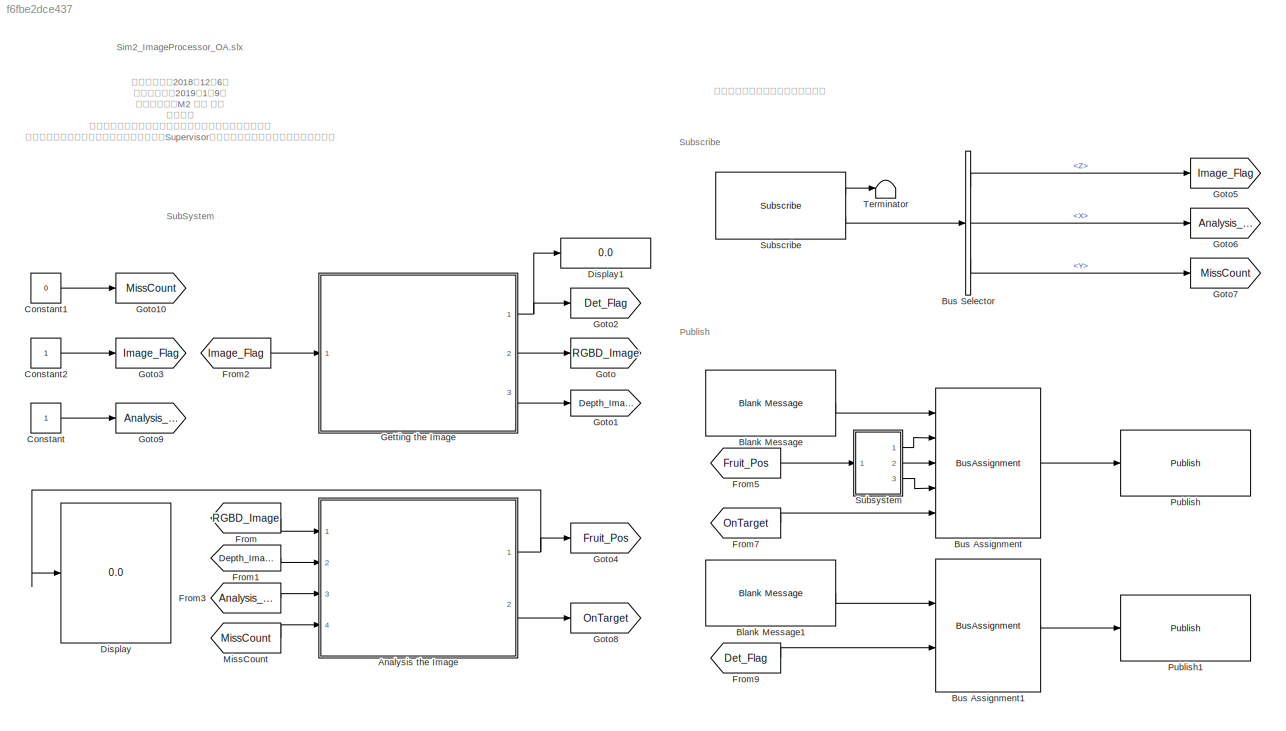
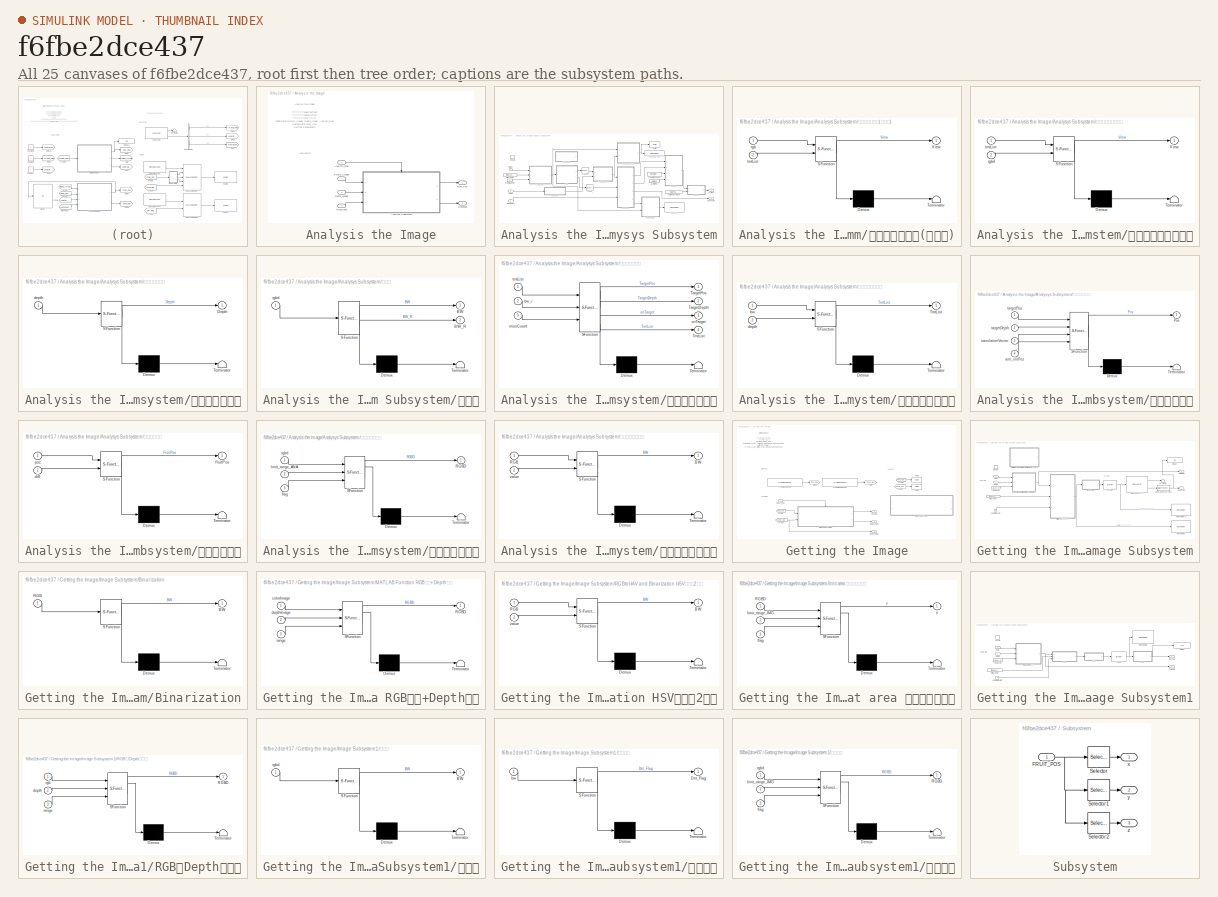
[diagram: thumbnail index - all 25 canvases of the model, root first then tree order]
MODEL slx_f6fbe2dce437
KIND model
CONFIG AbsTol = auto
CONFIG EnableMultiTasking = off
CONFIG FixedStep = auto
CONFIG InitFcn = %run('settingParams.m')
CONFIG MaxStep = auto
CONFIG MinStep = auto
CONFIG RelTol = 1e-3
CONFIG SampleTimeConstraint = Unconstrained
CONFIG SolverName = VariableStepAuto
CONFIG StartTime = 0.0
CONFIG StopTime = Inf
BLOCK [SubSystem] Analysis the Image
  Ports = [4, 2]
  RequestExecContextInheritance = off
BLOCK [Inport] Analysis the Image/Analysis_Flag
  Port = 3
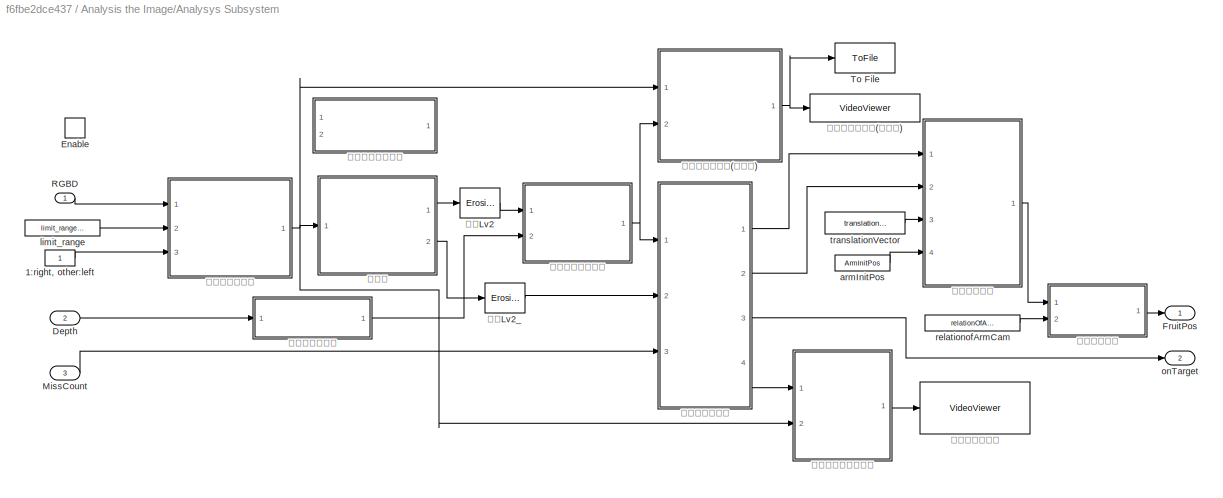
BLOCK [SubSystem] Analysis the Image/Analysys Subsystem
  Ports = [3, 2, 1]
  RequestExecContextInheritance = off
  TreatAsAtomicUnit = on
BLOCK [Constant] Analysis the Image/Analysys Subsystem/1:right, other:left
  SampleTime = dt
BLOCK [Inport] Analysis the Image/Analysys Subsystem/Depth
  Port = 2
BLOCK [EnablePort] Analysis the Image/Analysys Subsystem/Enable
  Ports = []
  PropagateVarSize = During execution
BLOCK [Outport] Analysis the Image/Analysys Subsystem/FruitPos
  VectorParamsAs1DForOutWhenUnconnected = off
BLOCK [Inport] Analysis the Image/Analysys Subsystem/MissCount
  Port = 3
BLOCK [Inport] Analysis the Image/Analysys Subsystem/RGBD
BLOCK [ToFile] Analysis the Image/Analysys Subsystem/To File
  Commented = on
  Filename = RGBD_map.mat
  MatrixName = RGBD
  Ports = [1]
  SaveFormat = Timeseries
BLOCK [Constant] Analysis the Image/Analysys Subsystem/armInitPos
  SampleTime = dt
  Value = ArmInitPos
  VectorParams1D = off
BLOCK [Constant] Analysis the Image/Analysys Subsystem/limit_range
  SampleTime = dt
  Value = limit_range_ANA
BLOCK [Outport] Analysis the Image/Analysys Subsystem/onTarget
  Port = 2
  VectorParamsAs1DForOutWhenUnconnected = off
BLOCK [Constant] Analysis the Image/Analysys Subsystem/relationofArmCam
  SampleTime = dt
  Value = relationOfArmCam
  VectorParams1D = off
BLOCK [Constant] Analysis the Image/Analysys Subsystem/translationVector
  SampleTime = dt
  Value = translationVector
  VectorParams1D = off
BLOCK [SubSystem] Analysis the Image/Analysys Subsystem/マーキング画像(デモ用)
  ErrorFcn = Stateflow.Translate.translate
  PermitHierarchicalResolution = ExplicitOnly
  Ports = [2, 1]
  RequestExecContextInheritance = off
  SFBlockType = MATLAB Function
  TreatAsAtomicUnit = on
BLOCK [Demux] Analysis the Image/Analysys Subsystem/マーキング画像(デモ用)/ Demux 
  Outputs = 1
  Ports = [1, 1]
BLOCK [S-Function] Analysis the Image/Analysys Subsystem/マーキング画像(デモ用)/ SFunction 
  EnableBusSupport = off
  FunctionName = sf_sfun
  PortCounts = [2 2]
  Ports = [2, 2]
  SFcnIsStateOwnerBlock = off
  SFunctionDeploymentMode = off
  Tag = Stateflow S-Function 8
BLOCK [Terminator] Analysis the Image/Analysys Subsystem/マーキング画像(デモ用)/ Terminator 
BLOCK [Outport] Analysis the Image/Analysys Subsystem/マーキング画像(デモ用)/View
  VectorParamsAs1DForOutWhenUnconnected = off
BLOCK [Inport] Analysis the Image/Analysys Subsystem/マーキング画像(デモ用)/rgb
BLOCK [Inport] Analysis the Image/Analysys Subsystem/マーキング画像(デモ用)/tmtList
  Port = 2
BLOCK [SubSystem] Analysis the Image/Analysys Subsystem/マーキング画像生成
  ErrorFcn = Stateflow.Translate.translate
  PermitHierarchicalResolution = ExplicitOnly
  Ports = [2, 1]
  RequestExecContextInheritance = off
  SFBlockType = MATLAB Function
  TreatAsAtomicUnit = on
BLOCK [Demux] Analysis the Image/Analysys Subsystem/マーキング画像生成/ Demux 
  Outputs = 1
  Ports = [1, 1]
BLOCK [S-Function] Analysis the Image/Analysys Subsystem/マーキング画像生成/ SFunction 
  EnableBusSupport = off
  FunctionName = sf_sfun
  PortCounts = [2 2]
  Ports = [2, 2]
  SFcnIsStateOwnerBlock = off
  SFunctionDeploymentMode = off
  Tag = Stateflow S-Function 7
BLOCK [Terminator] Analysis the Image/Analysys Subsystem/マーキング画像生成/ Terminator 
BLOCK [Outport] Analysis the Image/Analysys Subsystem/マーキング画像生成/View
  VectorParamsAs1DForOutWhenUnconnected = off
BLOCK [Inport] Analysis the Image/Analysys Subsystem/マーキング画像生成/rgbd
  Port = 2
BLOCK [Inport] Analysis the Image/Analysys Subsystem/マーキング画像生成/tmtList
BLOCK [SubSystem] Analysis the Image/Analysys Subsystem/上下反転を修正
  ErrorFcn = Stateflow.Translate.translate
  PermitHierarchicalResolution = ExplicitOnly
  Ports = [1, 1]
  RequestExecContextInheritance = off
  SFBlockType = MATLAB Function
  TreatAsAtomicUnit = on
BLOCK [Demux] Analysis the Image/Analysys Subsystem/上下反転を修正/ Demux 
  Outputs = 1
  Ports = [1, 1]
BLOCK [S-Function] Analysis the Image/Analysys Subsystem/上下反転を修正/ SFunction 
  EnableBusSupport = off
  FunctionName = sf_sfun
  PortCounts = [1 2]
  Ports = [1, 2]
  SFcnIsStateOwnerBlock = off
  SFunctionDeploymentMode = off
  Tag = Stateflow S-Function 1
BLOCK [Terminator] Analysis the Image/Analysys Subsystem/上下反転を修正/ Terminator 
BLOCK [Outport] Analysis the Image/Analysys Subsystem/上下反転を修正/Depth
  VectorParamsAs1DForOutWhenUnconnected = off
BLOCK [Inport] Analysis the Image/Analysys Subsystem/上下反転を修正/depth
BLOCK [SubSystem] Analysis the Image/Analysys Subsystem/二値化
  ErrorFcn = Stateflow.Translate.translate
  PermitHierarchicalResolution = ExplicitOnly
  Ports = [1, 2]
  RequestExecContextInheritance = off
  SFBlockType = MATLAB Function
  TreatAsAtomicUnit = on
BLOCK [Demux] Analysis the Image/Analysys Subsystem/二値化/ Demux 
  Outputs = 1
  Ports = [1, 1]
BLOCK [S-Function] Analysis the Image/Analysys Subsystem/二値化/ SFunction 
  EnableBusSupport = off
  FunctionName = sf_sfun
  PortCounts = [1 3]
  Ports = [1, 3]
  SFcnIsStateOwnerBlock = off
  SFunctionDeploymentMode = off
  Tag = Stateflow S-Function 4
BLOCK [Terminator] Analysis the Image/Analysys Subsystem/二値化/ Terminator 
BLOCK [Outport] Analysis the Image/Analysys Subsystem/二値化/BW
  VectorParamsAs1DForOutWhenUnconnected = off
BLOCK [Outport] Analysis the Image/Analysys Subsystem/二値化/BW_R
  Port = 2
  VectorParamsAs1DForOutWhenUnconnected = off
BLOCK [Inport] Analysis the Image/Analysys Subsystem/二値化/rgbd
BLOCK [VideoViewer] Analysis the Image/Analysys Subsystem/全果実検出画像
  FigPos = [86 614 418 305]
  Ports = [1]
  ScopeSpecificationString = vipscopes.VideoViewerScopeCfg('CurrentConfiguration', extmgr.ConfigurationSet(extmgr.Configuration('Core','General UI',true),extmgr.Configuration('Core','Source UI',true),extmgr.Configuration('Sources','WiredSimulink',true),extmgr.Configuration('Visuals','Video',true),extmgr.Configuration('Tools','Image Navigation Tools',true),extmgr.Configuration('Tools','Image Tool',true),extmgr.Configuration('T...<+74ch>
BLOCK [VideoViewer] Analysis the Image/Analysys Subsystem/全果実検出画像(デモ用)
  Commented = on
  FigPos = [717.666666666667 599.333333333333 418 304.666666666667]
  Ports = [1]
  ScopeSpecificationString = vipscopes.VideoViewerScopeCfg('CurrentConfiguration', extmgr.ConfigurationSet(extmgr.Configuration('Core','General UI',true),extmgr.Configuration('Core','Source UI',true),extmgr.Configuration('Sources','WiredSimulink',true),extmgr.Configuration('Visuals','Video',true),extmgr.Configuration('Tools','Image Navigation Tools',true,'Magnification',0.986974331850956),extmgr.Configuration('Tools','Image T...<+174ch>
  colormapValue = gray(256)
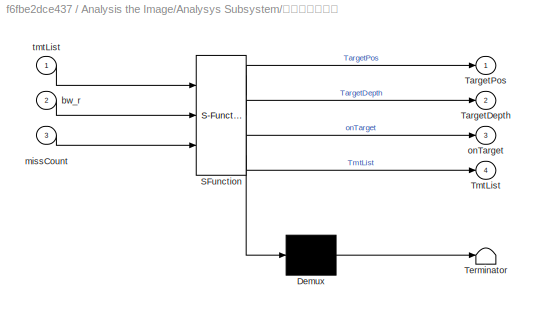
BLOCK [SubSystem] Analysis the Image/Analysys Subsystem/収穫果実を選択
  ErrorFcn = Stateflow.Translate.translate
  PermitHierarchicalResolution = ExplicitOnly
  Ports = [3, 4]
  RequestExecContextInheritance = off
  SFBlockType = MATLAB Function
  TreatAsAtomicUnit = on
BLOCK [Demux] Analysis the Image/Analysys Subsystem/収穫果実を選択/ Demux 
  Outputs = 1
  Ports = [1, 1]
BLOCK [S-Function] Analysis the Image/Analysys Subsystem/収穫果実を選択/ SFunction 
  EnableBusSupport = off
  FunctionName = sf_sfun
  PortCounts = [3 5]
  Ports = [3, 5]
  SFcnIsStateOwnerBlock = off
  SFunctionDeploymentMode = off
  Tag = Stateflow S-Function 17
BLOCK [Terminator] Analysis the Image/Analysys Subsystem/収穫果実を選択/ Terminator 
BLOCK [Outport] Analysis the Image/Analysys Subsystem/収穫果実を選択/TargetDepth
  Port = 2
  VectorParamsAs1DForOutWhenUnconnected = off
BLOCK [Outport] Analysis the Image/Analysys Subsystem/収穫果実を選択/TargetPos
  VectorParamsAs1DForOutWhenUnconnected = off
BLOCK [Outport] Analysis the Image/Analysys Subsystem/収穫果実を選択/TmtList
  Port = 4
  VectorParamsAs1DForOutWhenUnconnected = off
BLOCK [Inport] Analysis the Image/Analysys Subsystem/収穫果実を選択/bw_r
  Port = 2
BLOCK [Inport] Analysis the Image/Analysys Subsystem/収穫果実を選択/missCount
  Port = 3
BLOCK [Outport] Analysis the Image/Analysys Subsystem/収穫果実を選択/onTarget
  Port = 3
  VectorParamsAs1DForOutWhenUnconnected = off
BLOCK [Inport] Analysis the Image/Analysys Subsystem/収穫果実を選択/tmtList
BLOCK [Reference] Analysis the Image/Analysys Subsystem/収縮Lv2  REF=visionmorphops/Erosion
  Ports = [1, 1]
  SourceBlock = visionmorphops/Erosion
  SourceProductBaseCode = VP
  SourceType = Erosion
BLOCK [Reference] Analysis the Image/Analysys Subsystem/収縮Lv2_  REF=visionmorphops/Erosion
  Commented = through
  Ports = [1, 1]
  SourceBlock = visionmorphops/Erosion
  SourceProductBaseCode = VP
  SourceType = Erosion
BLOCK [SubSystem] Analysis the Image/Analysys Subsystem/各果実中心を検出
  ErrorFcn = Stateflow.Translate.translate
  PermitHierarchicalResolution = ExplicitOnly
  Ports = [2, 1]
  RequestExecContextInheritance = off
  SFBlockType = MATLAB Function
  TreatAsAtomicUnit = on
BLOCK [Demux] Analysis the Image/Analysys Subsystem/各果実中心を検出/ Demux 
  Outputs = 1
  Ports = [1, 1]
BLOCK [S-Function] Analysis the Image/Analysys Subsystem/各果実中心を検出/ SFunction 
  EnableBusSupport = off
  FunctionName = sf_sfun
  PortCounts = [2 2]
  Ports = [2, 2]
  SFcnIsStateOwnerBlock = off
  SFunctionDeploymentMode = off
  Tag = Stateflow S-Function 10
BLOCK [Terminator] Analysis the Image/Analysys Subsystem/各果実中心を検出/ Terminator 
BLOCK [Outport] Analysis the Image/Analysys Subsystem/各果実中心を検出/TmtList
  VectorParamsAs1DForOutWhenUnconnected = off
BLOCK [Inport] Analysis the Image/Analysys Subsystem/各果実中心を検出/bw
BLOCK [Inport] Analysis the Image/Analysys Subsystem/各果実中心を検出/depth
  Port = 2
BLOCK [SubSystem] Analysis the Image/Analysys Subsystem/現実座標変換
  ErrorFcn = Stateflow.Translate.translate
  PermitHierarchicalResolution = ExplicitOnly
  Ports = [4, 1]
  RequestExecContextInheritance = off
  SFBlockType = MATLAB Function
  TreatAsAtomicUnit = on
BLOCK [Demux] Analysis the Image/Analysys Subsystem/現実座標変換/ Demux 
  Outputs = 1
  Ports = [1, 1]
BLOCK [S-Function] Analysis the Image/Analysys Subsystem/現実座標変換/ SFunction 
  EnableBusSupport = off
  FunctionName = sf_sfun
  PortCounts = [4 2]
  Ports = [4, 2]
  SFcnIsStateOwnerBlock = off
  SFunctionDeploymentMode = off
  Tag = Stateflow S-Function 9
BLOCK [Terminator] Analysis the Image/Analysys Subsystem/現実座標変換/ Terminator 
BLOCK [Outport] Analysis the Image/Analysys Subsystem/現実座標変換/Pos
  VectorParamsAs1DForOutWhenUnconnected = off
BLOCK [Inport] Analysis the Image/Analysys Subsystem/現実座標変換/arm_initPos
  Port = 4
BLOCK [Inport] Analysis the Image/Analysys Subsystem/現実座標変換/targetDepth
  Port = 2
BLOCK [Inport] Analysis the Image/Analysys Subsystem/現実座標変換/targetPos
BLOCK [Inport] Analysis the Image/Analysys Subsystem/現実座標変換/translationVector
  Port = 3
BLOCK [SubSystem] Analysis the Image/Analysys Subsystem/直線距離変換
  ErrorFcn = Stateflow.Translate.translate
  PermitHierarchicalResolution = ExplicitOnly
  Ports = [2, 1]
  RequestExecContextInheritance = off
  SFBlockType = MATLAB Function
  TreatAsAtomicUnit = on
BLOCK [Demux] Analysis the Image/Analysys Subsystem/直線距離変換/ Demux 
  Outputs = 1
  Ports = [1, 1]
BLOCK [S-Function] Analysis the Image/Analysys Subsystem/直線距離変換/ SFunction 
  EnableBusSupport = off
  FunctionName = sf_sfun
  PortCounts = [2 2]
  Ports = [2, 2]
  SFcnIsStateOwnerBlock = off
  SFunctionDeploymentMode = off
  Tag = Stateflow S-Function 2
BLOCK [Terminator] Analysis the Image/Analysys Subsystem/直線距離変換/ Terminator 
BLOCK [Outport] Analysis the Image/Analysys Subsystem/直線距離変換/FruitPos
  VectorParamsAs1DForOutWhenUnconnected = off
BLOCK [Inport] Analysis the Image/Analysys Subsystem/直線距離変換/diff
  Port = 2
BLOCK [Inport] Analysis the Image/Analysys Subsystem/直線距離変換/pos
BLOCK [SubSystem] Analysis the Image/Analysys Subsystem/着目領域の限定
  ErrorFcn = Stateflow.Translate.translate
  PermitHierarchicalResolution = ExplicitOnly
  Ports = [3, 1]
  RequestExecContextInheritance = off
  SFBlockType = MATLAB Function
  TreatAsAtomicUnit = on
BLOCK [Demux] Analysis the Image/Analysys Subsystem/着目領域の限定/ Demux 
  Outputs = 1
  Ports = [1, 1]
BLOCK [S-Function] Analysis the Image/Analysys Subsystem/着目領域の限定/ SFunction 
  EnableBusSupport = off
  FunctionName = sf_sfun
  PortCounts = [3 2]
  Ports = [3, 2]
  SFcnIsStateOwnerBlock = off
  SFunctionDeploymentMode = off
  Tag = Stateflow S-Function 13
BLOCK [Terminator] Analysis the Image/Analysys Subsystem/着目領域の限定/ Terminator 
BLOCK [Outport] Analysis the Image/Analysys Subsystem/着目領域の限定/RGBD
  VectorParamsAs1DForOutWhenUnconnected = off
BLOCK [Inport] Analysis the Image/Analysys Subsystem/着目領域の限定/flag
  Port = 3
BLOCK [Inport] Analysis the Image/Analysys Subsystem/着目領域の限定/limit_range_ANA
  Port = 2
BLOCK [Inport] Analysis the Image/Analysys Subsystem/着目領域の限定/rgbd
BLOCK [SubSystem] Analysis the Image/Analysys Subsystem/閾値による二値化
  Commented = on
  ErrorFcn = Stateflow.Translate.translate
  PermitHierarchicalResolution = ExplicitOnly
  Ports = [2, 1]
  RequestExecContextInheritance = off
  SFBlockType = MATLAB Function
  TreatAsAtomicUnit = on
BLOCK [Demux] Analysis the Image/Analysys Subsystem/閾値による二値化/ Demux 
  Outputs = 1
  Ports = [1, 1]
BLOCK [S-Function] Analysis the Image/Analysys Subsystem/閾値による二値化/ SFunction 
  EnableBusSupport = off
  FunctionName = sf_sfun
  PortCounts = [2 2]
  Ports = [2, 2]
  SFcnIsStateOwnerBlock = off
  SFunctionDeploymentMode = off
  Tag = Stateflow S-Function 21
BLOCK [Terminator] Analysis the Image/Analysys Subsystem/閾値による二値化/ Terminator 
BLOCK [Outport] Analysis the Image/Analysys Subsystem/閾値による二値化/BW
  VectorParamsAs1DForOutWhenUnconnected = off
BLOCK [Inport] Analysis the Image/Analysys Subsystem/閾値による二値化/RGB
BLOCK [Inport] Analysis the Image/Analysys Subsystem/閾値による二値化/value
  Port = 2
BLOCK [Inport] Analysis the Image/Depth_Image
  Port = 2
BLOCK [Outport] Analysis the Image/Fruit_Pos
  VectorParamsAs1DForOutWhenUnconnected = off
BLOCK [Inport] Analysis the Image/MissCount
  Port = 4
BLOCK [Outport] Analysis the Image/OnTarget
  Port = 2
  VectorParamsAs1DForOutWhenUnconnected = off
BLOCK [Inport] Analysis the Image/RGBD_Image
BLOCK [Reference] Blank Message  REF=robotlib/Blank Message
  Ports = [0, 1]
  SourceBlock = robotlib/Blank Message
  SourceProductBaseCode = RR
  SourceType = ROS Blank Message
BLOCK [Reference] Blank Message1  REF=robotlib/Blank Message
  Ports = [0, 1]
  SourceBlock = robotlib/Blank Message
  SourceProductBaseCode = RR
  SourceType = ROS Blank Message
BLOCK [BusAssignment] Bus Assignment
  AssignedSignals = Twist.Linear.X,Twist.Linear.Y,Twist.Linear.Z,Twist.Angular.X
  Ports = [5, 1]
BLOCK [BusAssignment] Bus Assignment1
  AssignedSignals = Twist.Linear.X
  Ports = [2, 1]
BLOCK [BusSelector] Bus Selector
  OutputSignals = Twist.Linear.Z,Twist.Angular.X,Twist.Angular.Y
  Ports = [1, 3]
BLOCK [Constant] Constant
  Commented = on
BLOCK [Constant] Constant1
  Commented = on
  Value = 0
BLOCK [Constant] Constant2
  Commented = on
BLOCK [Display] Display
  Commented = on
  Decimation = 1
  Ports = [1]
BLOCK [Display] Display1
  Commented = on
  Decimation = 1
  Ports = [1]
BLOCK [From] From
  GotoTag = RGBD_Image
  TagVisibility = global
BLOCK [From] From1
  GotoTag = Depth_Image
  TagVisibility = global
BLOCK [From] From2
  GotoTag = Image_Flag
  TagVisibility = global
BLOCK [From] From3
  GotoTag = Analysis_Flag
  TagVisibility = global
BLOCK [From] From5
  GotoTag = Fruit_Pos
  TagVisibility = global
BLOCK [From] From7
  GotoTag = OnTarget
  TagVisibility = global
BLOCK [From] From9
  GotoTag = Det_Flag
  TagVisibility = global
BLOCK [SubSystem] Getting the Image
  Ports = [1, 3]
  RequestExecContextInheritance = off
BLOCK [Outport] Getting the Image/Depth_Image
  Port = 3
  VectorParamsAs1DForOutWhenUnconnected = off
BLOCK [Outport] Getting the Image/Det_Flag
  VectorParamsAs1DForOutWhenUnconnected = off
BLOCK [From] Getting the Image/From
  GotoTag = RGB_map
  TagVisibility = global
BLOCK [Reference] Getting the Image/From Video Device  REF=imaqlib/From Video Device
  Ports = [0, 1]
  SourceBlock = imaqlib/From Video Device
  SourceProductBaseCode = IA
  SourceType = From Video Device
  UserDataPersistent = on
BLOCK [Reference] Getting the Image/From Video Device1  REF=imaqlib/From Video Device
  Ports = [0, 1]
  SourceBlock = imaqlib/From Video Device
  SourceProductBaseCode = IA
  SourceType = From Video Device
  UserDataPersistent = on
BLOCK [From] Getting the Image/From1
  GotoTag = Depth_map
  TagVisibility = global
BLOCK [From] Getting the Image/From2
  GotoTag = RGB_map
  TagVisibility = global
BLOCK [From] Getting the Image/From3
  GotoTag = Depth_map
  TagVisibility = global
BLOCK [Goto] Getting the Image/Goto
  GotoTag = Depth_map
  TagVisibility = global
BLOCK [Goto] Getting the Image/Goto6
  GotoTag = RGB_map
  TagVisibility = global
BLOCK [SubSystem] Getting the Image/Image Subsystem
  Commented = on
  Ports = [2, 2, 1]
  RequestExecContextInheritance = off
  TreatAsAtomicUnit = on
BLOCK [Constant] Getting the Image/Image Subsystem/1:right, other:left
  SampleTime = dt
BLOCK [SubSystem] Getting the Image/Image Subsystem/Binarization
  ErrorFcn = Stateflow.Translate.translate
  PermitHierarchicalResolution = ExplicitOnly
  Ports = [1, 1]
  RequestExecContextInheritance = off
  SFBlockType = MATLAB Function
  TreatAsAtomicUnit = on
BLOCK [Demux] Getting the Image/Image Subsystem/Binarization/ Demux 
  Outputs = 1
  Ports = [1, 1]
BLOCK [S-Function] Getting the Image/Image Subsystem/Binarization/ SFunction 
  EnableBusSupport = off
  FunctionName = sf_sfun
  PortCounts = [1 2]
  Ports = [1, 2]
  SFcnIsStateOwnerBlock = off
  SFunctionDeploymentMode = off
  Tag = Stateflow S-Function 3
BLOCK [Terminator] Getting the Image/Image Subsystem/Binarization/ Terminator 
BLOCK [Outport] Getting the Image/Image Subsystem/Binarization/BW
  VectorParamsAs1DForOutWhenUnconnected = off
BLOCK [Inport] Getting the Image/Image Subsystem/Binarization/RGB
BLOCK [Reference] Getting the Image/Image Subsystem/Blob Analysis 重心検出  REF=visionstatistics/Blob Analysis
  Ports = [1, 2]
  SourceBlock = visionstatistics/Blob Analysis
  SourceProductBaseCode = VP
  SourceType = Blob Analysis
  Tag = vipblks_row_conv
BLOCK [Outport] Getting the Image/Image Subsystem/ClusterDet
  InitialOutput = 0
  OutputWhenDisabled = reset
  VectorParamsAs1DForOutWhenUnconnected = off
BLOCK [DataTypeConversion] Getting the Image/Image Subsystem/Data Type Conversion1
  RndMeth = Floor
  SaturateOnIntegerOverflow = off
BLOCK [Inport] Getting the Image/Image Subsystem/Depth
  Port = 2
BLOCK [Display] Getting the Image/Image Subsystem/Display
  Decimation = 1
  Ports = [1]
BLOCK [EnablePort] Getting the Image/Image Subsystem/Enable
  Ports = []
  StatesWhenEnabling = reset
BLOCK [Reference] Getting the Image/Image Subsystem/Erosion  REF=visionmorphops/Erosion
  Ports = [1, 1]
  SourceBlock = visionmorphops/Erosion
  SourceProductBaseCode = VP
  SourceType = Erosion
BLOCK [SubSystem] Getting the Image/Image Subsystem/MATLAB Function RGB画像+Depth画像
  ErrorFcn = Stateflow.Translate.translate
  PermitHierarchicalResolution = ExplicitOnly
  Ports = [3, 1]
  RequestExecContextInheritance = off
  SFBlockType = MATLAB Function
  TreatAsAtomicUnit = on
BLOCK [Demux] Getting the Image/Image Subsystem/MATLAB Function RGB画像+Depth画像/ Demux 
  Outputs = 1
  Ports = [1, 1]
BLOCK [S-Function] Getting the Image/Image Subsystem/MATLAB Function RGB画像+Depth画像/ SFunction 
  EnableBusSupport = off
  FunctionName = sf_sfun
  PortCounts = [3 2]
  Ports = [3, 2]
  SFcnIsStateOwnerBlock = off
  SFunctionDeploymentMode = off
  Tag = Stateflow S-Function 11
BLOCK [Terminator] Getting the Image/Image Subsystem/MATLAB Function RGB画像+Depth画像/ Terminator 
BLOCK [Outport] Getting the Image/Image Subsystem/MATLAB Function RGB画像+Depth画像/RGBD
  VectorParamsAs1DForOutWhenUnconnected = off
BLOCK [Inport] Getting the Image/Image Subsystem/MATLAB Function RGB画像+Depth画像/colorImage
BLOCK [Inport] Getting the Image/Image Subsystem/MATLAB Function RGB画像+Depth画像/depthImage
  Port = 2
BLOCK [Inport] Getting the Image/Image Subsystem/MATLAB Function RGB画像+Depth画像/range
  Port = 3
BLOCK [Inport] Getting the Image/Image Subsystem/RGB
BLOCK [Outport] Getting the Image/Image Subsystem/RGBDImg
  Port = 2
  VectorParamsAs1DForOutWhenUnconnected = off
BLOCK [SubSystem] Getting the Image/Image Subsystem/RGBtoHAV and Binarization HSV変換と2値化
  Commented = on
  ErrorFcn = Stateflow.Translate.translate
  PermitHierarchicalResolution = ExplicitOnly
  Ports = [2, 1]
  RequestExecContextInheritance = off
  SFBlockType = MATLAB Function
  TreatAsAtomicUnit = on
BLOCK [Demux] Getting the Image/Image Subsystem/RGBtoHAV and Binarization HSV変換と2値化/ Demux 
  Outputs = 1
  Ports = [1, 1]
BLOCK [S-Function] Getting the Image/Image Subsystem/RGBtoHAV and Binarization HSV変換と2値化/ SFunction 
  EnableBusSupport = off
  FunctionName = sf_sfun
  PortCounts = [2 2]
  Ports = [2, 2]
  SFcnIsStateOwnerBlock = off
  SFunctionDeploymentMode = off
  Tag = Stateflow S-Function 12
BLOCK [Terminator] Getting the Image/Image Subsystem/RGBtoHAV and Binarization HSV変換と2値化/ Terminator 
BLOCK [Outport] Getting the Image/Image Subsystem/RGBtoHAV and Binarization HSV変換と2値化/BW
  VectorParamsAs1DForOutWhenUnconnected = off
BLOCK [Inport] Getting the Image/Image Subsystem/RGBtoHAV and Binarization HSV変換と2値化/RGB
BLOCK [Inport] Getting the Image/Image Subsystem/RGBtoHAV and Binarization HSV変換と2値化/value
  Port = 2
BLOCK [Terminator] Getting the Image/Image Subsystem/Terminator
BLOCK [VideoViewer] Getting the Image/Image Subsystem/Video Viewer
  Commented = on
  FigPos = [641.666666666667 337.333333333333 638.666666666667 234.666666666667]
  Ports = [1]
  ScopeSpecificationString = vipscopes.VideoViewerScopeCfg('CurrentConfiguration', extmgr.ConfigurationSet(extmgr.Configuration('Core','General UI',true),extmgr.Configuration('Core','Source UI',true),extmgr.Configuration('Sources','WiredSimulink',true),extmgr.Configuration('Visuals','Video',true),extmgr.Configuration('Tools','Image Navigation Tools',true,'Magnification',0.738207547169811),extmgr.Configuration('Tools','Image T...<+161ch>
  colormapValue = gray(256)
BLOCK [VideoViewer] Getting the Image/Image Subsystem/Video Viewer1
  Commented = on
  FigPos = [641.666666666667 677.333333333333 638.666666666667 234.666666666667]
  Ports = [1]
  ScopeSpecificationString = vipscopes.VideoViewerScopeCfg('CurrentConfiguration', extmgr.ConfigurationSet(extmgr.Configuration('Core','General UI',true),extmgr.Configuration('Core','Source UI',true),extmgr.Configuration('Sources','WiredSimulink',true),extmgr.Configuration('Visuals','Video',true),extmgr.Configuration('Tools','Image Navigation Tools',true,'Magnification',0.738207547169811),extmgr.Configuration('Tools','Image T...<+160ch>
  colormapValue = gray(256)
BLOCK [SubSystem] Getting the Image/Image Subsystem/limit area 着目領域の限定
  ErrorFcn = Stateflow.Translate.translate
  PermitHierarchicalResolution = ExplicitOnly
  Ports = [3, 1]
  RequestExecContextInheritance = off
  SFBlockType = MATLAB Function
  TreatAsAtomicUnit = on
BLOCK [Demux] Getting the Image/Image Subsystem/limit area 着目領域の限定/ Demux 
  Outputs = 1
  Ports = [1, 1]
BLOCK [S-Function] Getting the Image/Image Subsystem/limit area 着目領域の限定/ SFunction 
  EnableBusSupport = off
  FunctionName = sf_sfun
  PortCounts = [3 2]
  Ports = [3, 2]
  SFcnIsStateOwnerBlock = off
  SFunctionDeploymentMode = off
  Tag = Stateflow S-Function 6
BLOCK [Terminator] Getting the Image/Image Subsystem/limit area 着目領域の限定/ Terminator 
BLOCK [Inport] Getting the Image/Image Subsystem/limit area 着目領域の限定/RGBD
BLOCK [Inport] Getting the Image/Image Subsystem/limit area 着目領域の限定/flag
  Port = 3
BLOCK [Inport] Getting the Image/Image Subsystem/limit area 着目領域の限定/limit_range_IMG
  Port = 2
BLOCK [Outport] Getting the Image/Image Subsystem/limit area 着目領域の限定/y
  VectorParamsAs1DForOutWhenUnconnected = off
BLOCK [Constant] Getting the Image/Image Subsystem/limit_range
  SampleTime = dt
  Value = limit_range_IMG
BLOCK [Constant] Getting the Image/Image Subsystem/range(m)
  SampleTime = dt
  Value = range_m
BLOCK [SubSystem] Getting the Image/Image Subsystem1
  Ports = [2, 2, 1]
  RequestExecContextInheritance = off
  TreatAsAtomicUnit = on
BLOCK [Constant] Getting the Image/Image Subsystem1/1:right, other:left
  SampleTime = dt
BLOCK [Inport] Getting the Image/Image Subsystem1/Depth
  Port = 2
BLOCK [Outport] Getting the Image/Image Subsystem1/Det_Flag
  InitialOutput = 0
  OutputWhenDisabled = reset
  VectorParamsAs1DForOutWhenUnconnected = off
BLOCK [Display] Getting the Image/Image Subsystem1/Display
  Commented = on
  Decimation = 1
  Ports = [1]
BLOCK [EnablePort] Getting the Image/Image Subsystem1/Enable
  Ports = []
  StatesWhenEnabling = reset
BLOCK [Inport] Getting the Image/Image Subsystem1/RGB
BLOCK [Outport] Getting the Image/Image Subsystem1/RGBDImg
  Port = 2
  VectorParamsAs1DForOutWhenUnconnected = off
BLOCK [SubSystem] Getting the Image/Image Subsystem1/RGBとDepthの適合
  ErrorFcn = Stateflow.Translate.translate
  PermitHierarchicalResolution = ExplicitOnly
  Ports = [3, 1]
  RequestExecContextInheritance = off
  SFBlockType = MATLAB Function
  TreatAsAtomicUnit = on
BLOCK [Demux] Getting the Image/Image Subsystem1/RGBとDepthの適合/ Demux 
  Outputs = 1
  Ports = [1, 1]
BLOCK [S-Function] Getting the Image/Image Subsystem1/RGBとDepthの適合/ SFunction 
  EnableBusSupport = off
  FunctionName = sf_sfun
  PortCounts = [3 2]
  Ports = [3, 2]
  SFcnIsStateOwnerBlock = off
  SFunctionDeploymentMode = off
  Tag = Stateflow S-Function 14
BLOCK [Terminator] Getting the Image/Image Subsystem1/RGBとDepthの適合/ Terminator 
BLOCK [Outport] Getting the Image/Image Subsystem1/RGBとDepthの適合/RGBD
  VectorParamsAs1DForOutWhenUnconnected = off
BLOCK [Inport] Getting the Image/Image Subsystem1/RGBとDepthの適合/depth
  Port = 2
BLOCK [Inport] Getting the Image/Image Subsystem1/RGBとDepthの適合/range
  Port = 3
BLOCK [Inport] Getting the Image/Image Subsystem1/RGBとDepthの適合/rgb
BLOCK [VideoViewer] Getting the Image/Image Subsystem1/Video Viewer
  Commented = on
  FigPos = [14.3333333333333 526 350.666666666667 267.333333333333]
  Ports = [1]
  ScopeSpecificationString = vipscopes.VideoViewerScopeCfg('CurrentConfiguration', extmgr.ConfigurationSet(extmgr.Configuration('Core','General UI',true),extmgr.Configuration('Core','Source UI',true),extmgr.Configuration('Sources','WiredSimulink',true),extmgr.Configuration('Visuals','Video',true),extmgr.Configuration('Tools','Image Navigation Tools',true,'Magnification',0.856132075471698),extmgr.Configuration('Tools','Image T...<+174ch>
  colormapValue = gray(256)
BLOCK [Constant] Getting the Image/Image Subsystem1/limit_range
  SampleTime = dt
  Value = limit_range_IMG
BLOCK [Constant] Getting the Image/Image Subsystem1/range(m)
  SampleTime = dt
  Value = range_m
BLOCK [SubSystem] Getting the Image/Image Subsystem1/二値化
  ErrorFcn = Stateflow.Translate.translate
  PermitHierarchicalResolution = ExplicitOnly
  Ports = [1, 1]
  RequestExecContextInheritance = off
  SFBlockType = MATLAB Function
  TreatAsAtomicUnit = on
BLOCK [Demux] Getting the Image/Image Subsystem1/二値化/ Demux 
  Outputs = 1
  Ports = [1, 1]
BLOCK [S-Function] Getting the Image/Image Subsystem1/二値化/ SFunction 
  EnableBusSupport = off
  FunctionName = sf_sfun
  PortCounts = [1 2]
  Ports = [1, 2]
  SFcnIsStateOwnerBlock = off
  SFunctionDeploymentMode = off
  Tag = Stateflow S-Function 5
BLOCK [Terminator] Getting the Image/Image Subsystem1/二値化/ Terminator 
BLOCK [Outport] Getting the Image/Image Subsystem1/二値化/BW
  VectorParamsAs1DForOutWhenUnconnected = off
BLOCK [Inport] Getting the Image/Image Subsystem1/二値化/rgbd
BLOCK [Reference] Getting the Image/Image Subsystem1/収縮Lv4  REF=visionmorphops/Erosion
  Ports = [1, 1]
  SourceBlock = visionmorphops/Erosion
  SourceProductBaseCode = VP
  SourceType = Erosion
BLOCK [SubSystem] Getting the Image/Image Subsystem1/果実発見
  ErrorFcn = Stateflow.Translate.translate
  PermitHierarchicalResolution = ExplicitOnly
  Ports = [1, 1]
  RequestExecContextInheritance = off
  SFBlockType = MATLAB Function
  TreatAsAtomicUnit = on
BLOCK [Demux] Getting the Image/Image Subsystem1/果実発見/ Demux 
  Outputs = 1
  Ports = [1, 1]
BLOCK [S-Function] Getting the Image/Image Subsystem1/果実発見/ SFunction 
  EnableBusSupport = off
  FunctionName = sf_sfun
  PortCounts = [1 2]
  Ports = [1, 2]
  SFcnIsStateOwnerBlock = off
  SFunctionDeploymentMode = off
  Tag = Stateflow S-Function 15
BLOCK [Terminator] Getting the Image/Image Subsystem1/果実発見/ Terminator 
BLOCK [Outport] Getting the Image/Image Subsystem1/果実発見/Det_Flag
  VectorParamsAs1DForOutWhenUnconnected = off
BLOCK [Inport] Getting the Image/Image Subsystem1/果実発見/bw
BLOCK [SubSystem] Getting the Image/Image Subsystem1/領域限定
  ErrorFcn = Stateflow.Translate.translate
  PermitHierarchicalResolution = ExplicitOnly
  Ports = [3, 1]
  RequestExecContextInheritance = off
  SFBlockType = MATLAB Function
  TreatAsAtomicUnit = on
BLOCK [Demux] Getting the Image/Image Subsystem1/領域限定/ Demux 
  Outputs = 1
  Ports = [1, 1]
BLOCK [S-Function] Getting the Image/Image Subsystem1/領域限定/ SFunction 
  EnableBusSupport = off
  FunctionName = sf_sfun
  PortCounts = [3 2]
  Ports = [3, 2]
  SFcnIsStateOwnerBlock = off
  SFunctionDeploymentMode = off
  Tag = Stateflow S-Function 16
BLOCK [Terminator] Getting the Image/Image Subsystem1/領域限定/ Terminator 
BLOCK [Outport] Getting the Image/Image Subsystem1/領域限定/RGBD
  VectorParamsAs1DForOutWhenUnconnected = off
BLOCK [Inport] Getting the Image/Image Subsystem1/領域限定/flag
  Port = 3
BLOCK [Inport] Getting the Image/Image Subsystem1/領域限定/limit_range_IMG
  Port = 2
BLOCK [Inport] Getting the Image/Image Subsystem1/領域限定/rgbd
BLOCK [Inport] Getting the Image/Image_Flag
BLOCK [Outport] Getting the Image/RGBD_Image
  Port = 2
  VectorParamsAs1DForOutWhenUnconnected = off
BLOCK [ToFile] Getting the Image/To File
  Filename = RGB_map.mat
  MatrixName = rgb
  Ports = [1]
  SaveFormat = Timeseries
BLOCK [ToFile] Getting the Image/To File1
  Filename = Depth_map.mat
  MatrixName = depth
  Ports = [1]
  SaveFormat = Timeseries
BLOCK [Goto] Goto
  GotoTag = RGBD_Image
  TagVisibility = global
BLOCK [Goto] Goto1
  GotoTag = Depth_Image
  TagVisibility = global
BLOCK [Goto] Goto10
  Commented = on
  GotoTag = MissCount
BLOCK [Goto] Goto2
  GotoTag = Det_Flag
  TagVisibility = global
BLOCK [Goto] Goto3
  Commented = on
  GotoTag = Image_Flag
BLOCK [Goto] Goto4
  GotoTag = Fruit_Pos
  TagVisibility = global
BLOCK [Goto] Goto5
  GotoTag = Image_Flag
  TagVisibility = global
BLOCK [Goto] Goto6
  GotoTag = Analysis_Flag
  TagVisibility = global
BLOCK [Goto] Goto7
  GotoTag = MissCount
  TagVisibility = global
BLOCK [Goto] Goto8
  GotoTag = OnTarget
  TagVisibility = global
BLOCK [Goto] Goto9
  Commented = on
  GotoTag = Analysis_Flag
BLOCK [From] MissCount
  GotoTag = MissCount
  TagVisibility = global
BLOCK [Reference] Publish  REF=robotlib/Publish
  Ports = [1]
  SourceBlock = robotlib/Publish
  SourceProductBaseCode = RR
  SourceType = ROS Publish
BLOCK [Reference] Publish1  REF=robotlib/Publish
  Ports = [1]
  SourceBlock = robotlib/Publish
  SourceProductBaseCode = RR
  SourceType = ROS Publish
BLOCK [Reference] Subscribe  REF=robotlib/Subscribe
  Ports = [0, 2]
  SourceBlock = robotlib/Subscribe
  SourceProductBaseCode = RR
  SourceType = ROS Subscribe
BLOCK [SubSystem] Subsystem
  Ports = [1, 3]
  RequestExecContextInheritance = off
BLOCK [Inport] Subsystem/FRUIT_POS
BLOCK [Selector] Subsystem/Selector
  IndexOptions = Index vector (dialog)
  Indices = 1
  InputPortWidth = 3
  OutputSizes = 1
  Ports = [1, 1]
BLOCK [Selector] Subsystem/Selector1
  IndexOptions = Index vector (dialog)
  Indices = 2
  InputPortWidth = 3
  OutputSizes = 1
  Ports = [1, 1]
BLOCK [Selector] Subsystem/Selector2
  IndexOptions = Index vector (dialog)
  Indices = 3
  InputPortWidth = 3
  OutputSizes = 1
  Ports = [1, 1]
BLOCK [Outport] Subsystem/x
  VectorParamsAs1DForOutWhenUnconnected = off
BLOCK [Outport] Subsystem/y
  Port = 2
  VectorParamsAs1DForOutWhenUnconnected = off
BLOCK [Outport] Subsystem/z
  Port = 3
  VectorParamsAs1DForOutWhenUnconnected = off
BLOCK [Terminator] Terminator
ANNOTATION (root): 初回作成日：2018年12月6日 最終更新日：2019年1月9日 最終更新者：M2 武藤 冬樹 注意点： 画像の取得，画像の加工，画像の解析を行うモデルです． 実働時にはワーカーとして立ち上がるため，Supervisorとは別のワークスペースを適用します． VideoViewerの使用後は削除もしくはコメントアウト化にご協力ください．
ANNOTATION (root): ※直交アーム用のプログラムです！
ANNOTATION (root): Publish
ANNOTATION (root): Sim2_ImageProcessor_OA.slx
ANNOTATION (root): SubSystem
ANNOTATION (root): Subscribe
ANNOTATION Analysis the Image: 初回作成日：2018年10月26日 最終更新日：2018年12月5日 最終更新者：M1 武藤冬樹 InputData： RGBD_Image, Depth_Image, Analysis_Flag OutputData： Fruit_Pos Setting Parameter： erosion, limit_range_ANA, value, range_min, dummyDepth, translationVector, armInitPos, relationOfArmCam
ANNOTATION Analysis the Image: Analysis the Image
ANNOTATION Analysis the Image: Application
ANNOTATION Getting the Image: 作成日：2018年10月26日 作成者：M1 奈須野 智弘 InputData： Image_Flag OutputData： Cluster_Det, RGBD_Image, Depth_Image, Det_Image Setting Parameter： erosion, range_m, limit_range_IMG, value, depthDevice, dt
ANNOTATION Getting the Image: Application
ANNOTATION Getting the Image: Getting the Image
ANNOTATION Getting the Image: Interface
ANNOTATION Getting the Image: Logging
ANNOTATION Getting the Image/Image Subsystem: erosion
ANNOTATION Getting the Image/Image Subsystem: Depth_fliplr
ANNOTATION Getting the Image/Image Subsystem1: Depth_fliplr
LINE Analysis the Image/Analysis_Flag:1 -> Analysis the Image/Analysys Subsystem:enable
LINE Analysis the Image/Analysys Subsystem/1:right, other:left:1 -> Analysis the Image/Analysys Subsystem/着目領域の限定:3
LINE Analysis the Image/Analysys Subsystem/Depth:1 -> Analysis the Image/Analysys Subsystem/上下反転を修正:1
LINE Analysis the Image/Analysys Subsystem/MissCount:1 -> Analysis the Image/Analysys Subsystem/収穫果実を選択:3
LINE Analysis the Image/Analysys Subsystem/RGBD:1 -> Analysis the Image/Analysys Subsystem/着目領域の限定:1
LINE Analysis the Image/Analysys Subsystem/armInitPos:1 -> Analysis the Image/Analysys Subsystem/現実座標変換:4
LINE Analysis the Image/Analysys Subsystem/limit_range:1 -> Analysis the Image/Analysys Subsystem/着目領域の限定:2
LINE Analysis the Image/Analysys Subsystem/relationofArmCam:1 -> Analysis the Image/Analysys Subsystem/直線距離変換:2
LINE Analysis the Image/Analysys Subsystem/translationVector:1 -> Analysis the Image/Analysys Subsystem/現実座標変換:3
NET Analysis the Image/Analysys Subsystem/マーキング画像(デモ用):1 -> Analysis the Image/Analysys Subsystem/To File:1, Analysis the Image/Analysys Subsystem/全果実検出画像(デモ用):1
LINE Analysis the Image/Analysys Subsystem/マーキング画像生成:1 -> Analysis the Image/Analysys Subsystem/全果実検出画像:1
LINE Analysis the Image/Analysys Subsystem/上下反転を修正:1 -> Analysis the Image/Analysys Subsystem/各果実中心を検出:2
LINE Analysis the Image/Analysys Subsystem/二値化:1 -> Analysis the Image/Analysys Subsystem/収縮Lv2:1
LINE Analysis the Image/Analysys Subsystem/二値化:2 -> Analysis the Image/Analysys Subsystem/収縮Lv2_:1
LINE Analysis the Image/Analysys Subsystem/収穫果実を選択:1 -> Analysis the Image/Analysys Subsystem/現実座標変換:1
LINE Analysis the Image/Analysys Subsystem/収穫果実を選択:2 -> Analysis the Image/Analysys Subsystem/現実座標変換:2
LINE Analysis the Image/Analysys Subsystem/収穫果実を選択:3 -> Analysis the Image/Analysys Subsystem/onTarget:1
LINE Analysis the Image/Analysys Subsystem/収穫果実を選択:4 -> Analysis the Image/Analysys Subsystem/マーキング画像生成:1
LINE Analysis the Image/Analysys Subsystem/収縮Lv2:1 -> Analysis the Image/Analysys Subsystem/各果実中心を検出:1
LINE Analysis the Image/Analysys Subsystem/収縮Lv2_:1 -> Analysis the Image/Analysys Subsystem/収穫果実を選択:2
NET Analysis the Image/Analysys Subsystem/各果実中心を検出:1 -> Analysis the Image/Analysys Subsystem/マーキング画像(デモ用):2, Analysis the Image/Analysys Subsystem/収穫果実を選択:1
LINE Analysis the Image/Analysys Subsystem/現実座標変換:1 -> Analysis the Image/Analysys Subsystem/直線距離変換:1
LINE Analysis the Image/Analysys Subsystem/直線距離変換:1 -> Analysis the Image/Analysys Subsystem/FruitPos:1
NET Analysis the Image/Analysys Subsystem/着目領域の限定:1 -> Analysis the Image/Analysys Subsystem/マーキング画像(デモ用):1, Analysis the Image/Analysys Subsystem/マーキング画像生成:2, Analysis the Image/Analysys Subsystem/二値化:1
LINE Analysis the Image/Analysys Subsystem:1 -> Analysis the Image/Fruit_Pos:1
LINE Analysis the Image/Analysys Subsystem:2 -> Analysis the Image/OnTarget:1
LINE Analysis the Image/Depth_Image:1 -> Analysis the Image/Analysys Subsystem:2
LINE Analysis the Image/MissCount:1 -> Analysis the Image/Analysys Subsystem:3
LINE Analysis the Image/RGBD_Image:1 -> Analysis the Image/Analysys Subsystem:1
NET Analysis the Image:1 -> Display:1, Goto4:1
LINE Analysis the Image:2 -> Goto8:1
LINE Blank Message1:1 -> Bus Assignment1:1
LINE Blank Message:1 -> Bus Assignment:1
LINE Bus Assignment1:1 -> Publish1:1
LINE Bus Assignment:1 -> Publish:1
LINE Bus Selector:1 -> Goto5:1
LINE Bus Selector:2 -> Goto6:1
LINE Bus Selector:3 -> Goto7:1
LINE Constant1:1 -> Goto10:1
LINE Constant2:1 -> Goto3:1
LINE Constant:1 -> Goto9:1
LINE From1:1 -> Analysis the Image:2
LINE From2:1 -> Getting the Image:1
LINE From3:1 -> Analysis the Image:3
LINE From5:1 -> Subsystem:1
LINE From7:1 -> Bus Assignment:5
LINE From9:1 -> Bus Assignment1:2
LINE From:1 -> Analysis the Image:1
LINE Getting the Image/From Video Device1:1 -> Getting the Image/Goto:1
LINE Getting the Image/From Video Device:1 -> Getting the Image/Goto6:1
NET Getting the Image/From1:1 -> Getting the Image/Depth_Image:1, Getting the Image/Image Subsystem1:2
LINE Getting the Image/From2:1 -> Getting the Image/To File:1
LINE Getting the Image/From3:1 -> Getting the Image/To File1:1
LINE Getting the Image/From:1 -> Getting the Image/Image Subsystem1:1
LINE Getting the Image/Image Subsystem/1:right, other:left:1 -> Getting the Image/Image Subsystem/limit area 着目領域の限定:3
LINE Getting the Image/Image Subsystem/Binarization:1 -> Getting the Image/Image Subsystem/Erosion:1
LINE Getting the Image/Image Subsystem/Blob Analysis 重心検出:1 -> Getting the Image/Image Subsystem/Terminator:1
LINE Getting the Image/Image Subsystem/Blob Analysis 重心検出:2 -> Getting the Image/Image Subsystem/Data Type Conversion1:1
NET Getting the Image/Image Subsystem/Data Type Conversion1:1 -> Getting the Image/Image Subsystem/ClusterDet:1, Getting the Image/Image Subsystem/Display:1
LINE Getting the Image/Image Subsystem/Depth:1 -> Getting the Image/Image Subsystem/MATLAB Function RGB画像+Depth画像:2
NET Getting the Image/Image Subsystem/Erosion:1 -> Getting the Image/Image Subsystem/Blob Analysis 重心検出:1, Getting the Image/Image Subsystem/Video Viewer1:1
NET Getting the Image/Image Subsystem/MATLAB Function RGB画像+Depth画像:1 -> Getting the Image/Image Subsystem/RGBDImg:1, Getting the Image/Image Subsystem/limit area 着目領域の限定:1
LINE Getting the Image/Image Subsystem/RGB:1 -> Getting the Image/Image Subsystem/MATLAB Function RGB画像+Depth画像:1
NET Getting the Image/Image Subsystem/limit area 着目領域の限定:1 -> Getting the Image/Image Subsystem/Binarization:1, Getting the Image/Image Subsystem/Video Viewer:1
LINE Getting the Image/Image Subsystem/limit_range:1 -> Getting the Image/Image Subsystem/limit area 着目領域の限定:2
LINE Getting the Image/Image Subsystem/range(m):1 -> Getting the Image/Image Subsystem/MATLAB Function RGB画像+Depth画像:3
LINE Getting the Image/Image Subsystem1/1:right, other:left:1 -> Getting the Image/Image Subsystem1/領域限定:3
LINE Getting the Image/Image Subsystem1/Depth:1 -> Getting the Image/Image Subsystem1/RGBとDepthの適合:2
LINE Getting the Image/Image Subsystem1/RGB:1 -> Getting the Image/Image Subsystem1/RGBとDepthの適合:1
NET Getting the Image/Image Subsystem1/RGBとDepthの適合:1 -> Getting the Image/Image Subsystem1/RGBDImg:1, Getting the Image/Image Subsystem1/領域限定:1
LINE Getting the Image/Image Subsystem1/limit_range:1 -> Getting the Image/Image Subsystem1/領域限定:2
LINE Getting the Image/Image Subsystem1/range(m):1 -> Getting the Image/Image Subsystem1/RGBとDepthの適合:3
LINE Getting the Image/Image Subsystem1/二値化:1 -> Getting the Image/Image Subsystem1/収縮Lv4:1
NET Getting the Image/Image Subsystem1/収縮Lv4:1 -> Getting the Image/Image Subsystem1/Video Viewer:1, Getting the Image/Image Subsystem1/果実発見:1
NET Getting the Image/Image Subsystem1/果実発見:1 -> Getting the Image/Image Subsystem1/Det_Flag:1, Getting the Image/Image Subsystem1/Display:1
LINE Getting the Image/Image Subsystem1/領域限定:1 -> Getting the Image/Image Subsystem1/二値化:1
LINE Getting the Image/Image Subsystem1:1 -> Getting the Image/Det_Flag:1
LINE Getting the Image/Image Subsystem1:2 -> Getting the Image/RGBD_Image:1
LINE Getting the Image/Image_Flag:1 -> Getting the Image/Image Subsystem1:enable
NET Getting the Image:1 -> Display1:1, Goto2:1
LINE Getting the Image:2 -> Goto:1
LINE Getting the Image:3 -> Goto1:1
LINE MissCount:1 -> Analysis the Image:4
LINE Subscribe:1 -> Terminator:1
LINE Subscribe:2 -> Bus Selector:1
NET Subsystem/FRUIT_POS:1 -> Subsystem/Selector1:1, Subsystem/Selector2:1, Subsystem/Selector:1
LINE Subsystem/Selector1:1 -> Subsystem/y:1
LINE Subsystem/Selector2:1 -> Subsystem/z:1
LINE Subsystem/Selector:1 -> Subsystem/x:1
LINE Subsystem:1 -> Bus Assignment:2
LINE Subsystem:2 -> Bus Assignment:3
LINE Subsystem:3 -> Bus Assignment:4
note: NET lines group one-source signal fan-out (src -> all destinations, sorted); 1:1 wires keep LINE
CHART Getting the Image/Image Subsystem/MATLAB Function
RGB画像+Depth画像 states=1 transitions=1
  STATE_LABEL 'eML_blk_kernel()'
  STATE_LABEL "SCRIPT:\nfunction RGBD  = fcn(colorImage, depthImage, range)\n\ncoder.extrinsic('pcfromkinect')\ncoder.extrinsic('evalin')\ncoder.extrinsic('getfield')\n\n% depthDevice = imaq.VideoDevice('kinect',2);\ndevice = evalin('base', 'depthDevice');\n\npc = pcfromkinect(device,depthImage,colorImage, 'depthCentric');\na = single(zeros(424, 512,3));\nb = uint8(zeros(424, 512,3));\na = getfield(pc, 'Location');\nb = getfi...<+259ch>"
CHART Getting the Image/Image Subsystem/RGBtoHAV and Binarization
HSV変換と2値化 states=1 transitions=1
  STATE_LABEL 'eML_blk_kernel()'
  STATE_LABEL 'SCRIPT:\nfunction BW = createMask(RGB, value)\n%createMask  Threshold RGB image using auto-generated code from colorThresholder app.\n%  [BW,MASKEDRGBIMAGE] = createMask(RGB) thresholds image RGB using\n%  auto-generated code from the colorThresholder App. The colorspace and\n%  minimum/maximum values for each channel of the colorspace were set in the\n%  App and result in a binary mask BW and a composi...<+698ch>'
CHART Analysis the Image/Analysys Subsystem/着目領域の限定 states=1 transitions=1
  STATE_LABEL 'eML_blk_kernel()'
  STATE_LABEL 'SCRIPT:\nfunction RGBD = LimitArea(rgbd, limit_range_ANA, flag)\n\n\n%{\n==============================================================\n背景除去をするブロックです。\n\nIn: RGB画像（背景除去）、着目領域閾値、アームの取り付け位置に関するフラグ\nOut:\u3000RGB画像（背景除去+領域限定）\n==============================================================\n%}\n\n%===========================\n% 上側除去\n%===========================\nfor i=1:limit_range_ANA(1)\n    rgbd(i,:,:)=0;\nend\n%=======...<+673ch>'
CHART Getting the Image/Image Subsystem1/RGBとDepthの適合 states=1 transitions=1
  STATE_LABEL 'eML_blk_kernel()'
  STATE_LABEL "SCRIPT:\nfunction RGBD = GenarateMainImage(rgb, depth, range)\n\n%{\n==============================================================\nRGB(1080x1920x3)とDepth(424x512x1)の位置関係を適合\n更に奥行き一定以上を背景と見做し除去するブロックです。\n\nIn: RGB画像、Depth画像、背景閾値\nOut:\u3000RGBD画像（背景除去）\n==============================================================\n%}\n\ncoder.extrinsic('pcfromkinect')\ncoder.extrinsic('evalin')\ncoder.extrinsic('getfield')\n\n% dept...<+507ch>"
CHART Getting the Image/Image Subsystem1/果実発見 states=1 transitions=1
  STATE_LABEL 'eML_blk_kernel()'
  STATE_LABEL 'SCRIPT:\nfunction Det_Flag = Discovery(bw)\n\n%{\n==============================================================\n熟した果実の有無を返すブロックです。\n\nIn: バイナリ画像\nOut:\u3000\n==============================================================\n%}\n\n\nh = size(bw, 1);\nw = size(bw, 2);\nDet_Flag = 0;\nfor x = 1: w\n    for y = 1: h\n        if bw(y, x) >= 1\n            Det_Flag = 1;\n        end\n    end\nend'
CHART Getting the Image/Image Subsystem1/領域限定 states=1 transitions=1
  STATE_LABEL 'eML_blk_kernel()'
  STATE_LABEL 'SCRIPT:\nfunction RGBD = LimitArea(rgbd, limit_range_IMG, flag)\n\n\n%{\n==============================================================\n背景除去をするブロックです。\n\nIn: RGB画像（背景除去）、着目領域閾値、アームの取り付け位置に関するフラグ\nOut:\u3000RGB画像（背景除去+領域限定）\n==============================================================\n%}\n\n%===========================\n% 上側除去\n%===========================\nfor i=1:limit_range_IMG(1)\n    rgbd(i,:,:)=0;\nend\n\n%======...<+719ch>'
CHART Analysis the Image/Analysys Subsystem/収穫果実を選択 states=1 transitions=1
  STATE_LABEL 'eML_blk_kernel()'
  STATE_LABEL 'SCRIPT:\nfunction [TargetPos, TargetDepth, onTarget, TmtList] = Selection(tmtList, bw_r, missCount)\n\n\n%{\n==============================================================\n収穫する一つのトマトを決めるブロックです。\n\nIn: RGB画像（背景除去+領域限定）、トマト情報リスト、バイナリ画像（赤）、連続失敗回数\nOut:\u3000XY座標、Depth値、収穫するか否か、マーキング画像\n\nトマト情報リスト\n    １：Y座標\n    ２：X座標\n    ３：Depth値\n    ４：評価値\n==============================================================\n%}\n\n\nnone = 99...<+1833ch>'
CHART Analysis the Image/Analysys Subsystem/閾値による二値化 states=1 transitions=1
  STATE_LABEL 'eML_blk_kernel()'
  STATE_LABEL 'SCRIPT:\nfunction BW = createMask(RGB, value)\n%createMask  Threshold RGB image using auto-generated code from colorThresholder app.\n%  [BW,MASKEDRGBIMAGE] = createMask(RGB) thresholds image RGB using\n%  auto-generated code from the colorThresholder App. The colorspace and\n%  minimum/maximum values for each channel of the colorspace were set in the\n%  App and result in a binary mask BW and a composi...<+698ch>'
CHART Analysis the Image/Analysys Subsystem/上下反転を修正 states=1 transitions=1
  STATE_LABEL 'eML_blk_kernel()'
  STATE_LABEL 'SCRIPT:\nfunction Depth = Depth_flipr(depth)\n    Depth = fliplr(depth);\nend'
CHART Analysis the Image/Analysys Subsystem/直線距離変換 states=1 transitions=1
  STATE_LABEL 'eML_blk_kernel()'
  STATE_LABEL 'SCRIPT:\nfunction FruitPos = Converter2(pos, diff)\n\n\n%{\n==============================================================\nアーム視点の座標に変換するブロックです。\n\nIn: 果実の現実座標\nOut:\u3000アーム視点の座標\n==============================================================\n%}\n\n\nFruitPos = [0, 0, 0];\n%===========================\n% 直線距離の算出\n%Pos(1)=Pos(1)*cos(asin((Pos(2))/Pos(1))) - (90 /pi * asin(Pos(2)/Pos(1))+16)*12; \n%16:16°(関心領域の中心とカメラの角度...<+287ch>'
CHART Getting the Image/Image Subsystem/Binarization states=1 transitions=1
  STATE_LABEL 'eML_blk_kernel()'
  STATE_LABEL 'SCRIPT:\nfunction BW = createMask(RGB)\n    sigmaI = [85.8997609774271 -39.1553459604252 -38.6963626815188;\n        -39.1553459604252 133.189825077682 -61.8149107865788;\n        -38.6963626815188 -61.8149107865787 85.4460573367766];\n\n    centroid = [0.377317984497057, 0.51866805610024, 0.304385088726629;\n        0.511377845841187 0.682406674784993 0.311679884061617;\n        0.258554224598926 0.34336...<+1597ch>'
CHART Analysis the Image/Analysys Subsystem/二値化 states=1 transitions=1
  STATE_LABEL 'eML_blk_kernel()'
  STATE_LABEL 'SCRIPT:\nfunction [BW, BW_R] = Binaryzation(rgbd)\n\n\n%{\n==============================================================\nクラスタリングにより二値化をするブロックです。\nクラスタリング手法：K-means++法\n    K；5\n    距離：マハラノビス距離\n    元データ：菜園画像（1920*1080）\n    判定\n    各クラスタインデックスの意味\n        4：赤トマト領域\n        2；緑トマト領域\n        1,3,5：その他\n\nIn: RGB画像（背景除去+領域限定）\nOut:\u3000バイナリ画像(トマト)、バイナリ画像(熟したトマト)\n=========================================================...<+2242ch>'
CHART Getting the Image/Image Subsystem1/二値化 states=1 transitions=1
  STATE_LABEL 'eML_blk_kernel()'
  STATE_LABEL 'SCRIPT:\nfunction BW = Binaryzation(rgbd)\n\n\n%{\n==============================================================\nクラスタリングにより二値化をするブロックです。\nクラスタリング手法：K-means++法\n    K；5\n    距離：マハラノビス距離\n    元データ：菜園画像（1920*1080）\n    判定\n    各クラスタインデックスの意味\n        4：赤トマト領域\n        2；緑トマト領域\n        1,3,5：その他\n\nIn: RGB画像（背景除去+領域限定）\nOut:\u3000バイナリ画像\n==============================================================\n%}\n\n%=================...<+2098ch>'
CHART Getting the Image/Image Subsystem/limit area
着目領域の限定 states=1 transitions=1
  STATE_LABEL 'eML_blk_kernel()'
  STATE_LABEL 'SCRIPT:\nfunction y = fcn(RGBD, limit_range_IMG, flag)\n\n% 上側除去\nfor i=1:limit_range_IMG(1)\n    RGBD(i,:,:)=0;\nend\n% 下側除去\nfor i=limit_range_IMG(2):424\n    RGBD(i,:,:)=0;\nend\n\n% 424*512pixel\n% 横半分256の半分128±50pixel\n% 右側着目：flag = 1 : 左側領域除去：i=78:178\n% 左側着目：other    : 右側領域除去：i=334:438\n    \nif flag==1\n    % 左側除去\n    for i=1:limit_range_IMG(3)\n        RGBD(:,i,:)=0;\n    end\n    for i=limit_range_IMG(4):512...<+186ch>'
CHART Analysis the Image/Analysys Subsystem/マーキング画像生成 states=1 transitions=1
  STATE_LABEL 'eML_blk_kernel()'
  STATE_LABEL 'SCRIPT:\nfunction View = GenerateImage(tmtList, rgbd)\n\n\n%{\n==============================================================\nトマトマーカーを含む画像を生成するブロックです。\n\nIn: RGB画像（背景除去+領域限定）、トマト情報リスト\nOut:\u3000マーキング画像\n\nトマト情報リスト\n    １：Y座標\n    ２：X座標\n    ３：Depth値\n    ４：評価値\n==============================================================\n%}\n\n\n%===========================\n% 描画\n% 緑果実\u3000：緑\n% 第１候補：橙\n% 第２候補：黄\n% 以降\u3000\u3000：白\n%==================...<+1147ch>'
CHART Analysis the Image/Analysys Subsystem/マーキング画像(デモ用) states=1 transitions=1
  STATE_LABEL 'eML_blk_kernel()'
  STATE_LABEL 'SCRIPT:\nfunction View = GenerateImageDemo(rgb, tmtList)\n\n\n%{\n==============================================================\nトマトマーカーを含む画像を生成するブロックです。\n\nIn: RGB画像（背景除去+領域限定）、トマト情報リスト\nOut:\u3000マーキング画像\n\nトマト情報リスト\n    １：Y座標\n    ２：X座標\n    ３：Depth値\n    ４：評価値\n==============================================================\n%}\n\n\n%===========================\n% 描画\n%===========================\nlistSize = size(tmtList...<+621ch>'
CHART Analysis the Image/Analysys Subsystem/現実座標変換 states=1 transitions=1
  STATE_LABEL 'eML_blk_kernel()'
  STATE_LABEL "SCRIPT:\nfunction Pos = Converter(targetPos, targetDepth, translationVector ,arm_initPos)\n\n\n%{\n==============================================================\n画像座標系(px)を現実座標系(mm)に変換するブロックです。\n\nIn: XY座標、Depth値、??、アームの初期位置\nOut:\u3000果実の現実座標\n==============================================================\n%}\n\ncoder.extrinsic('evalin', 'pointsToWorld')\nParams = evalin('base', 'IRcameraParams');\nR = evalin('base...<+682ch>"
CHART Analysis the Image/Analysys Subsystem/各果実中心を検出 states=1 transitions=1
  STATE_LABEL 'eML_blk_kernel()'
  STATE_LABEL 'SCRIPT:\nfunction TmtList = Detection(bw, depth)\n\n\n%{\n==============================================================\n各果実座標をリストで返すブロックです。\n\n径固定球体・逐次検出法を用います。\n\nIn: バイナリ画像、Depth画像\nOut:\u3000トマト情報リスト\n\n\nトマト情報リスト\n    １：Y座標\n    ２：X座標\n    ３：Depth値\n    ４：評価値\n==============================================================\n%}\n\n\nlistSize = 30;\nnone = 9999;\nr = 23;\n[h, w] = size(bw);\nlock = zeros(size(bw));\nTmtList = ...<+840ch>'
CHART  states=0 transitions=0
CHART  states=0 transitions=0
CHART  states=0 transitions=0
CHART  states=0 transitions=0
CHART  states=0 transitions=0
CHART  states=0 transitions=0
CHART  states=0 transitions=0
CHART  states=0 transitions=0
CHART  states=0 transitions=0
CHART  states=0 transitions=0
CHART  states=0 transitions=0
CHART  states=0 transitions=0
CHART  states=0 transitions=0
CHART  states=0 transitions=0
CHART  states=0 transitions=0
CHART  states=0 transitions=0
CHART  states=0 transitions=0
CHART  states=0 transitions=0
